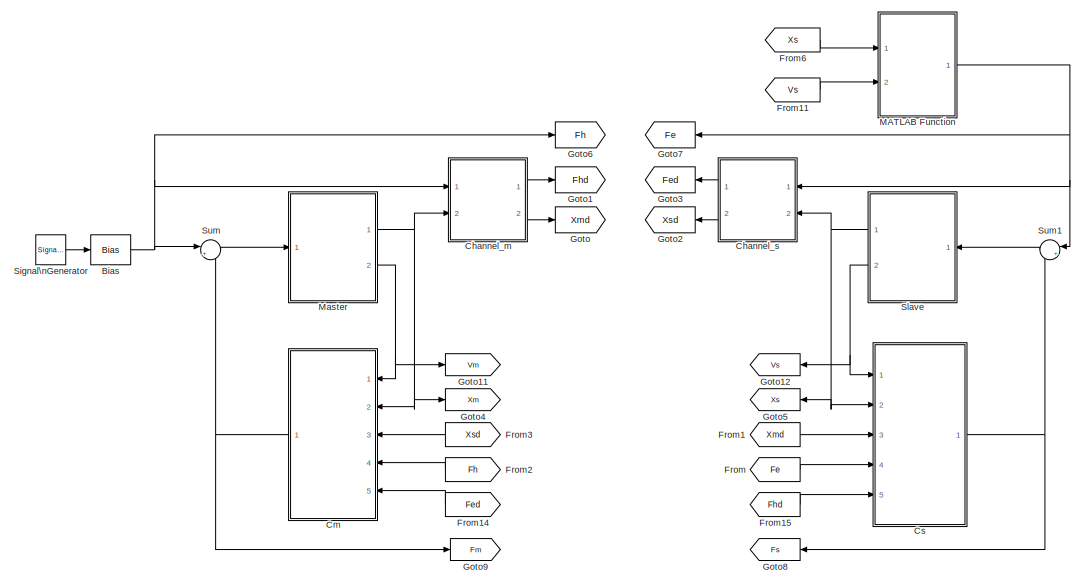
[diagram: root canvas - part 1/2, left side, full height]
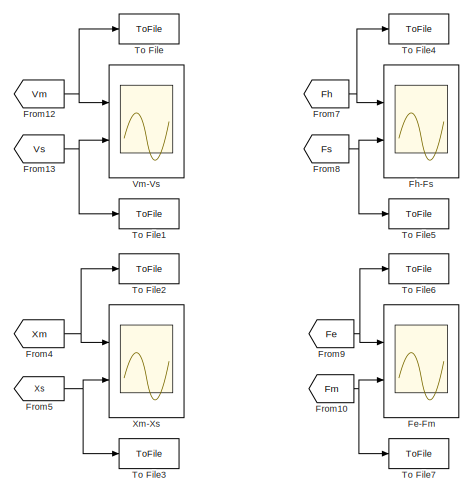
[diagram: root canvas - part 2/2, right side, full height]
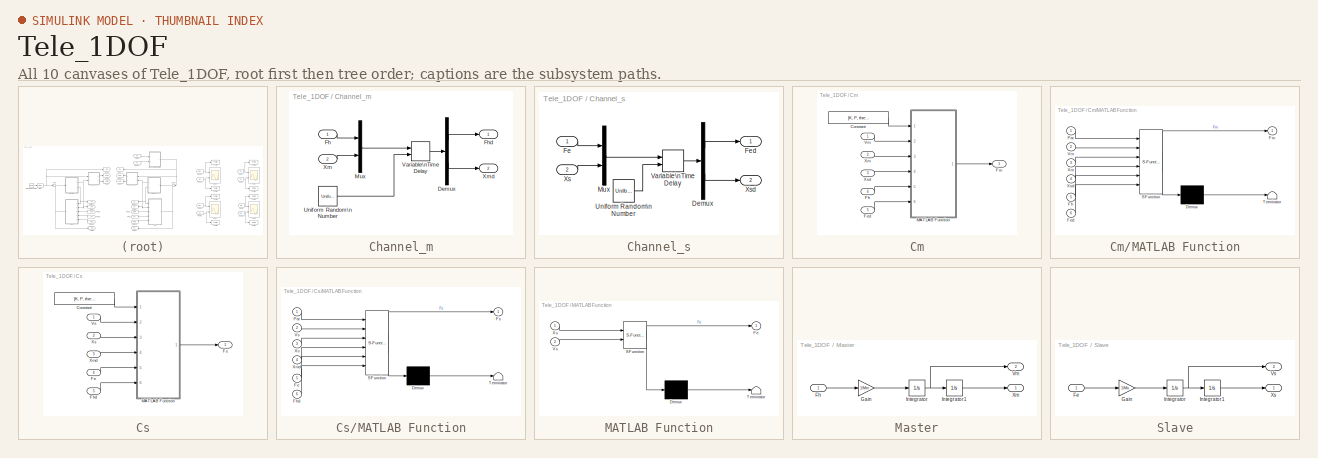
[diagram: thumbnail index - all 10 canvases of the model, root first then tree order]
MODEL Tele_1DOF
KIND model
BLOCK [Bias] Bias
  Bias = 0.5
  SID = 78
  SaturateOnIntegerOverflow = off
BLOCK [SubSystem] Channel_m
  Ports = [2, 2]
  RequestExecContextInheritance = off
  SID = 52
  Variant = off
BLOCK [Demux] Channel_m/Demux
  DisplayOption = bar
  Outputs = 2
  Ports = [1, 2]
  SID = 50
BLOCK [Inport] Channel_m/Fh
  IconDisplay = Port number
  SID = 53
BLOCK [Outport] Channel_m/Fhd
  IconDisplay = Port number
  SID = 55
BLOCK [Mux] Channel_m/Mux
  DisplayOption = bar
  Inputs = 2
  Ports = [2, 1]
  SID = 49
BLOCK [UniformRandomNumber] Channel_m/Uniform Random\nNumber
  Maximum = dm
  Minimum = 0
  SID = 47
  SampleTime = 0.0001
BLOCK [VariableTransportDelay] Channel_m/Variable\nTime Delay
  MaximumDelay = dm
  Ports = [2, 1]
  SID = 43
BLOCK [Inport] Channel_m/Xm
  IconDisplay = Port number
  Port = 2
  SID = 54
BLOCK [Outport] Channel_m/Xmd
  IconDisplay = Port number
  Port = 2
  SID = 56
BLOCK [SubSystem] Channel_s
  Ports = [2, 2]
  RequestExecContextInheritance = off
  SID = 57
  Variant = off
BLOCK [Demux] Channel_s/Demux
  DisplayOption = bar
  Outputs = 2
  Ports = [1, 2]
  SID = 60
BLOCK [Inport] Channel_s/Fe
  IconDisplay = Port number
  SID = 58
BLOCK [Outport] Channel_s/Fed
  IconDisplay = Port number
  SID = 64
BLOCK [Mux] Channel_s/Mux
  DisplayOption = bar
  Inputs = 2
  Ports = [2, 1]
  SID = 61
BLOCK [UniformRandomNumber] Channel_s/Uniform Random\nNumber
  Maximum = ds
  Minimum = 0
  SID = 62
  SampleTime = 0
BLOCK [VariableTransportDelay] Channel_s/Variable\nTime Delay
  MaximumDelay = ds
  Ports = [2, 1]
  SID = 63
BLOCK [Inport] Channel_s/Xs
  IconDisplay = Port number
  Port = 2
  SID = 59
BLOCK [Outport] Channel_s/Xsd
  IconDisplay = Port number
  Port = 2
  SID = 65
BLOCK [SubSystem] Cm
  Ports = [5, 1]
  RequestExecContextInheritance = off
  SID = 26
  Variant = off
BLOCK [Constant] Cm/Constant
  SID = 25
  Value = [K, P, threshold, gamma]
BLOCK [Inport] Cm/Fed
  IconDisplay = Port number
  Port = 5
  SID = 123
BLOCK [Inport] Cm/Fh
  IconDisplay = Port number
  Port = 4
  SID = 30
BLOCK [Outport] Cm/Fm
  IconDisplay = Port number
  SID = 31
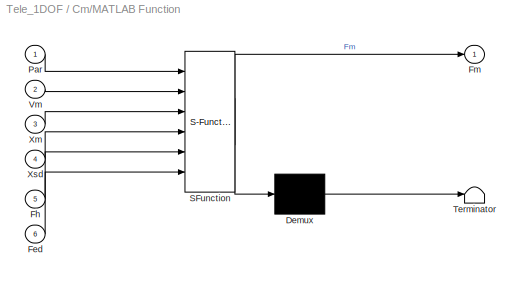
BLOCK [SubSystem] Cm/MATLAB Function
  ErrorFcn = Stateflow.Translate.translate
  PermitHierarchicalResolution = ExplicitOnly
  Ports = [6, 1]
  RequestExecContextInheritance = off
  SFBlockType = MATLAB Function
  SID = 23
  TreatAsAtomicUnit = on
  Variant = off
BLOCK [Demux] Cm/MATLAB Function/ Demux 
  Outputs = 1
  Ports = [1, 1]
  SID = 23::17
BLOCK [S-Function] Cm/MATLAB Function/ SFunction 
  EnableBusSupport = on
  FunctionName = sf_sfun
  PortCounts = [6 2]
  Ports = [6, 2]
  SFunctionDeploymentMode = off
  SID = 23::16
  Tag = Stateflow S-Function Tele_1DOF 2
BLOCK [Terminator] Cm/MATLAB Function/ Terminator 
  SID = 23::18
BLOCK [Inport] Cm/MATLAB Function/Fed
  IconDisplay = Port number
  Port = 6
  SID = 23::22
BLOCK [Inport] Cm/MATLAB Function/Fh
  IconDisplay = Port number
  Port = 5
  SID = 23::23
BLOCK [Outport] Cm/MATLAB Function/Fm
  IconDisplay = Port number
  SID = 23::5
BLOCK [Inport] Cm/MATLAB Function/Par
  IconDisplay = Port number
  SID = 23::1
BLOCK [Inport] Cm/MATLAB Function/Vm
  IconDisplay = Port number
  Port = 2
  SID = 23::19
BLOCK [Inport] Cm/MATLAB Function/Xm
  IconDisplay = Port number
  Port = 3
  SID = 23::20
BLOCK [Inport] Cm/MATLAB Function/Xsd
  IconDisplay = Port number
  Port = 4
  SID = 23::21
BLOCK [Inport] Cm/Vm
  IconDisplay = Port number
  SID = 27
BLOCK [Inport] Cm/Xm
  IconDisplay = Port number
  Port = 2
  SID = 28
BLOCK [Inport] Cm/Xsd
  IconDisplay = Port number
  Port = 3
  SID = 29
BLOCK [SubSystem] Cs
  Ports = [5, 1]
  RequestExecContextInheritance = off
  SID = 32
  Variant = off
BLOCK [Constant] Cs/Constant
  SID = 37
  Value = [K, P, threshold, gamma]
BLOCK [Inport] Cs/Fe
  IconDisplay = Port number
  Port = 4
  SID = 36
BLOCK [Inport] Cs/Fhd
  IconDisplay = Port number
  Port = 5
  SID = 125
BLOCK [Outport] Cs/Fs
  IconDisplay = Port number
  SID = 39
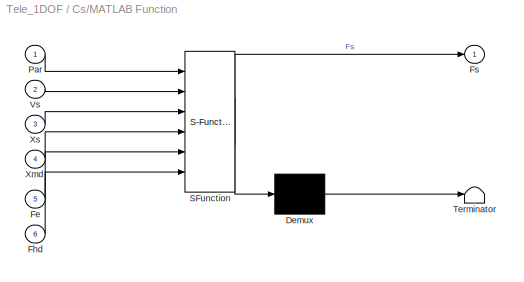
BLOCK [SubSystem] Cs/MATLAB Function
  ErrorFcn = Stateflow.Translate.translate
  PermitHierarchicalResolution = ExplicitOnly
  Ports = [6, 1]
  RequestExecContextInheritance = off
  SFBlockType = MATLAB Function
  SID = 38
  TreatAsAtomicUnit = on
  Variant = off
BLOCK [Demux] Cs/MATLAB Function/ Demux 
  Outputs = 1
  Ports = [1, 1]
  SID = 38::17
BLOCK [S-Function] Cs/MATLAB Function/ SFunction 
  EnableBusSupport = on
  FunctionName = sf_sfun
  PortCounts = [6 2]
  Ports = [6, 2]
  SFunctionDeploymentMode = off
  SID = 38::16
  Tag = Stateflow S-Function Tele_1DOF 1
BLOCK [Terminator] Cs/MATLAB Function/ Terminator 
  SID = 38::18
BLOCK [Inport] Cs/MATLAB Function/Fe
  IconDisplay = Port number
  Port = 5
  SID = 38::23
BLOCK [Inport] Cs/MATLAB Function/Fhd
  IconDisplay = Port number
  Port = 6
  SID = 38::22
BLOCK [Outport] Cs/MATLAB Function/Fs
  IconDisplay = Port number
  SID = 38::5
BLOCK [Inport] Cs/MATLAB Function/Par
  IconDisplay = Port number
  SID = 38::1
BLOCK [Inport] Cs/MATLAB Function/Vs
  IconDisplay = Port number
  Port = 2
  SID = 38::19
BLOCK [Inport] Cs/MATLAB Function/Xmd
  IconDisplay = Port number
  Port = 4
  SID = 38::21
BLOCK [Inport] Cs/MATLAB Function/Xs
  IconDisplay = Port number
  Port = 3
  SID = 38::20
BLOCK [Inport] Cs/Vs
  IconDisplay = Port number
  SID = 33
BLOCK [Inport] Cs/Xmd
  IconDisplay = Port number
  Port = 3
  SID = 35
BLOCK [Inport] Cs/Xs
  IconDisplay = Port number
  Port = 2
  SID = 34
BLOCK [Scope] Fe-Fm
  NumInputPorts = 2
  Ports = [2]
  SID = 95
  ScopeSpecificationString = Simulink.scopes.TimeScopeBlockCfg('CurrentConfiguration', extmgr.ConfigurationSet(extmgr.Configuration('Core','General UI',true),extmgr.Configuration('Core','Source UI',true),extmgr.Configuration('Sources','WiredSimulink',true,'DataLoggingVariableName','ScopeData2'),extmgr.Configuration('Visuals','Time Domain',true,'SerializedDisplays',{struct('MinYLimReal','-547.34009','MaxYLimReal','60.81557','Y...<+1453ch>
BLOCK [Scope] Fh-Fs
  NumInputPorts = 2
  Ports = [2]
  SID = 89
  ScopeSpecificationString = Simulink.scopes.TimeScopeBlockCfg('CurrentConfiguration', extmgr.ConfigurationSet(extmgr.Configuration('Core','General UI',true),extmgr.Configuration('Core','Source UI',true),extmgr.Configuration('Sources','WiredSimulink',true,'DataLoggingVariableName','ScopeData1'),extmgr.Configuration('Visuals','Time Domain',true,'SerializedDisplays',{struct('MinYLimReal','-6.6554','MaxYLimReal','9.57213','YLabe...<+1466ch>
BLOCK [From] From
  GotoTag = Fe
  SID = 73
BLOCK [From] From1
  GotoTag = Xmd
  SID = 74
BLOCK [From] From10
  GotoTag = Fm
  SID = 101
BLOCK [From] From11
  GotoTag = Vs
  SID = 102
BLOCK [From] From12
  GotoTag = Vm
  SID = 105
BLOCK [From] From13
  GotoTag = Vs
  SID = 106
BLOCK [From] From14
  GotoTag = Fed
  SID = 124
BLOCK [From] From15
  GotoTag = Fhd
  SID = 126
BLOCK [From] From2
  GotoTag = Fh
  SID = 75
BLOCK [From] From3
  GotoTag = Xsd
  SID = 76
BLOCK [From] From4
  GotoTag = Xm
  SID = 80
BLOCK [From] From5
  GotoTag = Xs
  SID = 81
BLOCK [From] From6
  GotoTag = Xs
  SID = 88
BLOCK [From] From7
  GotoTag = Fh
  SID = 93
BLOCK [From] From8
  GotoTag = Fs
  SID = 94
BLOCK [From] From9
  GotoTag = Fe
  SID = 100
BLOCK [Goto] Goto
  GotoTag = Xmd
  SID = 69
BLOCK [Goto] Goto1
  GotoTag = Fhd
  SID = 70
BLOCK [Goto] Goto11
  GotoTag = Vm
  SID = 107
BLOCK [Goto] Goto12
  GotoTag = Vs
  SID = 108
BLOCK [Goto] Goto2
  GotoTag = Xsd
  SID = 71
BLOCK [Goto] Goto3
  GotoTag = Fed
  SID = 72
BLOCK [Goto] Goto4
  GotoTag = Xm
  SID = 84
BLOCK [Goto] Goto5
  GotoTag = Xs
  SID = 85
BLOCK [Goto] Goto6
  GotoTag = Fh
  SID = 90
BLOCK [Goto] Goto7
  GotoTag = Fe
  SID = 92
BLOCK [Goto] Goto8
  GotoTag = Fs
  SID = 97
BLOCK [Goto] Goto9
  GotoTag = Fm
  SID = 98
BLOCK [SubSystem] MATLAB Function
  ErrorFcn = Stateflow.Translate.translate
  PermitHierarchicalResolution = ExplicitOnly
  Ports = [2, 1]
  RequestExecContextInheritance = off
  SFBlockType = MATLAB Function
  SID = 77
  TreatAsAtomicUnit = on
  Variant = off
BLOCK [Demux] MATLAB Function/ Demux 
  Outputs = 1
  Ports = [1, 1]
  SID = 77::17
BLOCK [S-Function] MATLAB Function/ SFunction 
  EnableBusSupport = on
  FunctionName = sf_sfun
  PortCounts = [2 2]
  Ports = [2, 2]
  SFunctionDeploymentMode = off
  SID = 77::16
  Tag = Stateflow S-Function Tele_1DOF 3
BLOCK [Terminator] MATLAB Function/ Terminator 
  SID = 77::18
BLOCK [Outport] MATLAB Function/Fe
  IconDisplay = Port number
  SID = 77::5
BLOCK [Inport] MATLAB Function/Vs
  IconDisplay = Port number
  Port = 2
  SID = 77::19
BLOCK [Inport] MATLAB Function/Xs
  IconDisplay = Port number
  SID = 77::1
BLOCK [SubSystem] Master
  Ports = [1, 2]
  RequestExecContextInheritance = off
  SID = 7
  Variant = off
BLOCK [Inport] Master/Fh
  IconDisplay = Port number
  SID = 8
BLOCK [Gain] Master/Gain
  Gain = 1/Mm
  OutDataTypeStr = Inherit: Inherit via internal rule
  ParamDataTypeStr = Inherit: Inherit via internal rule
  SID = 82
  SaturateOnIntegerOverflow = off
BLOCK [Integrator] Master/Integrator
  InitialCondition = vm0
  Ports = [1, 1]
  SID = 2
BLOCK [Integrator] Master/Integrator1
  InitialCondition = pm0
  Ports = [1, 1]
  SID = 3
BLOCK [Outport] Master/Vm
  IconDisplay = Port number
  Port = 2
  SID = 9
BLOCK [Outport] Master/Xm
  IconDisplay = Port number
  SID = 10
BLOCK [SignalGenerator] Signal\nGenerator
  Frequency = pi/10
  Ports = [0, 1]
  SID = 40
  Units = rad/sec
BLOCK [SubSystem] Slave
  Ports = [1, 2]
  RequestExecContextInheritance = off
  SID = 11
  Variant = off
BLOCK [Inport] Slave/Fe
  IconDisplay = Port number
  SID = 12
BLOCK [Gain] Slave/Gain
  Gain = 1/Ms
  OutDataTypeStr = Inherit: Inherit via internal rule
  ParamDataTypeStr = Inherit: Inherit via internal rule
  SID = 83
  SaturateOnIntegerOverflow = off
BLOCK [Integrator] Slave/Integrator
  InitialCondition = vs0
  Ports = [1, 1]
  SID = 13
BLOCK [Integrator] Slave/Integrator1
  InitialCondition = ps0
  Ports = [1, 1]
  SID = 14
BLOCK [Outport] Slave/Vs
  IconDisplay = Port number
  Port = 2
  SID = 16
BLOCK [Outport] Slave/Xs
  IconDisplay = Port number
  SID = 17
BLOCK [Sum] Sum
  IconShape = round
  InputSameDT = off
  Inputs = |++
  OutDataTypeStr = Inherit: Inherit via internal rule
  Ports = [2, 1]
  SID = 41
  SaturateOnIntegerOverflow = off
BLOCK [Sum] Sum1
  IconShape = round
  InputSameDT = off
  Inputs = |++
  OutDataTypeStr = Inherit: Inherit via internal rule
  Ports = [2, 1]
  SID = 42
  SaturateOnIntegerOverflow = off
BLOCK [ToFile] To File
  Filename = Vm.mat
  MatrixName = Vm
  Ports = [1]
  SID = 111
  SaveFormat = Timeseries
BLOCK [ToFile] To File1
  Filename = Vs.mat
  MatrixName = Vs
  Ports = [1]
  SID = 112
  SaveFormat = Timeseries
BLOCK [ToFile] To File2
  Filename = Xm.mat
  MatrixName = Xm
  Ports = [1]
  SID = 113
  SaveFormat = Timeseries
BLOCK [ToFile] To File3
  Filename = Xs.mat
  MatrixName = Xs
  Ports = [1]
  SID = 114
  SaveFormat = Timeseries
BLOCK [ToFile] To File4
  Filename = Fh.mat
  MatrixName = Fh
  Ports = [1]
  SID = 115
  SaveFormat = Timeseries
BLOCK [ToFile] To File5
  Filename = Fs.mat
  MatrixName = Fs
  Ports = [1]
  SID = 116
  SaveFormat = Timeseries
BLOCK [ToFile] To File6
  Filename = Fe.mat
  MatrixName = Fe
  Ports = [1]
  SID = 117
  SaveFormat = Timeseries
BLOCK [ToFile] To File7
  Filename = Fm.mat
  MatrixName = Fm
  Ports = [1]
  SID = 118
  SaveFormat = Timeseries
BLOCK [Scope] Vm-Vs
  NumInputPorts = 2
  Ports = [2]
  SID = 104
  ScopeSpecificationString = Simulink.scopes.TimeScopeBlockCfg('CurrentConfiguration', extmgr.ConfigurationSet(extmgr.Configuration('Core','General UI',true),extmgr.Configuration('Core','Source UI',true),extmgr.Configuration('Sources','WiredSimulink',true,'DataLoggingVariableName','ScopeData1'),extmgr.Configuration('Visuals','Time Domain',true,'SerializedDisplays',{struct('MinYLimReal','-0.36628','MaxYLimReal','0.49294','YLab...<+1476ch>
BLOCK [Scope] Xm-Xs
  NumInputPorts = 2
  Ports = [2]
  SID = 79
  ScopeSpecificationString = Simulink.scopes.TimeScopeBlockCfg('CurrentConfiguration', extmgr.ConfigurationSet(extmgr.Configuration('Core','General UI',true),extmgr.Configuration('Core','Source UI',true),extmgr.Configuration('Sources','WiredSimulink',true),extmgr.Configuration('Visuals','Time Domain',true,'SerializedDisplays',{struct('MinYLimReal','-24.12111','MaxYLimReal','4.08022','YLabelReal','','MinYLimMag','0.00000','Max...<+1440ch>
NET Bias:1 -> Channel_m:1, Goto6:1, Sum:1
LINE Channel_m/Demux:1 -> Channel_m/Fhd:1
LINE Channel_m/Demux:2 -> Channel_m/Xmd:1
LINE Channel_m/Fh:1 -> Channel_m/Mux:1
LINE Channel_m/Mux:1 -> Channel_m/Variable\nTime Delay:1
LINE Channel_m/Uniform Random\nNumber:1 -> Channel_m/Variable\nTime Delay:2
LINE Channel_m/Variable\nTime Delay:1 -> Channel_m/Demux:1
LINE Channel_m/Xm:1 -> Channel_m/Mux:2
LINE Channel_m:1 -> Goto1:1
LINE Channel_m:2 -> Goto:1
LINE Channel_s/Demux:1 -> Channel_s/Fed:1
LINE Channel_s/Demux:2 -> Channel_s/Xsd:1
LINE Channel_s/Fe:1 -> Channel_s/Mux:1
LINE Channel_s/Mux:1 -> Channel_s/Variable\nTime Delay:1
LINE Channel_s/Uniform Random\nNumber:1 -> Channel_s/Variable\nTime Delay:2
LINE Channel_s/Variable\nTime Delay:1 -> Channel_s/Demux:1
LINE Channel_s/Xs:1 -> Channel_s/Mux:2
LINE Channel_s:1 -> Goto3:1
LINE Channel_s:2 -> Goto2:1
LINE Cm/Constant:1 -> Cm/MATLAB Function:1
LINE Cm/Fed:1 -> Cm/MATLAB Function:6
LINE Cm/Fh:1 -> Cm/MATLAB Function:5
LINE Cm/MATLAB Function/ Demux :1 -> Cm/MATLAB Function/ Terminator :1
LINE Cm/MATLAB Function/ SFunction :1 -> Cm/MATLAB Function/ Demux :1
LINE Cm/MATLAB Function/ SFunction :2 -> Cm/MATLAB Function/Fm:1
LINE Cm/MATLAB Function/Fed:1 -> Cm/MATLAB Function/ SFunction :6
LINE Cm/MATLAB Function/Fh:1 -> Cm/MATLAB Function/ SFunction :5
LINE Cm/MATLAB Function/Par:1 -> Cm/MATLAB Function/ SFunction :1
LINE Cm/MATLAB Function/Vm:1 -> Cm/MATLAB Function/ SFunction :2
LINE Cm/MATLAB Function/Xm:1 -> Cm/MATLAB Function/ SFunction :3
LINE Cm/MATLAB Function/Xsd:1 -> Cm/MATLAB Function/ SFunction :4
LINE Cm/MATLAB Function:1 -> Cm/Fm:1
LINE Cm/Vm:1 -> Cm/MATLAB Function:2
LINE Cm/Xm:1 -> Cm/MATLAB Function:3
LINE Cm/Xsd:1 -> Cm/MATLAB Function:4
NET Cm:1 -> Goto9:1, Sum:2
LINE Cs/Constant:1 -> Cs/MATLAB Function:1
LINE Cs/Fe:1 -> Cs/MATLAB Function:5
LINE Cs/Fhd:1 -> Cs/MATLAB Function:6
LINE Cs/MATLAB Function/ Demux :1 -> Cs/MATLAB Function/ Terminator :1
LINE Cs/MATLAB Function/ SFunction :1 -> Cs/MATLAB Function/ Demux :1
LINE Cs/MATLAB Function/ SFunction :2 -> Cs/MATLAB Function/Fs:1
LINE Cs/MATLAB Function/Fe:1 -> Cs/MATLAB Function/ SFunction :5
LINE Cs/MATLAB Function/Fhd:1 -> Cs/MATLAB Function/ SFunction :6
LINE Cs/MATLAB Function/Par:1 -> Cs/MATLAB Function/ SFunction :1
LINE Cs/MATLAB Function/Vs:1 -> Cs/MATLAB Function/ SFunction :2
LINE Cs/MATLAB Function/Xmd:1 -> Cs/MATLAB Function/ SFunction :4
LINE Cs/MATLAB Function/Xs:1 -> Cs/MATLAB Function/ SFunction :3
LINE Cs/MATLAB Function:1 -> Cs/Fs:1
LINE Cs/Vs:1 -> Cs/MATLAB Function:2
LINE Cs/Xmd:1 -> Cs/MATLAB Function:4
LINE Cs/Xs:1 -> Cs/MATLAB Function:3
NET Cs:1 -> Goto8:1, Sum1:2
NET From10:1 -> Fe-Fm:2, To File7:1
LINE From11:1 -> MATLAB Function:2
NET From12:1 -> To File:1, Vm-Vs:1
NET From13:1 -> To File1:1, Vm-Vs:2
LINE From14:1 -> Cm:5
LINE From15:1 -> Cs:5
LINE From1:1 -> Cs:3
LINE From2:1 -> Cm:4
LINE From3:1 -> Cm:3
NET From4:1 -> To File2:1, Xm-Xs:1
NET From5:1 -> To File3:1, Xm-Xs:2
LINE From6:1 -> MATLAB Function:1
NET From7:1 -> Fh-Fs:1, To File4:1
NET From8:1 -> Fh-Fs:2, To File5:1
NET From9:1 -> Fe-Fm:1, To File6:1
LINE From:1 -> Cs:4
LINE MATLAB Function/ Demux :1 -> MATLAB Function/ Terminator :1
LINE MATLAB Function/ SFunction :1 -> MATLAB Function/ Demux :1
LINE MATLAB Function/ SFunction :2 -> MATLAB Function/Fe:1
LINE MATLAB Function/Vs:1 -> MATLAB Function/ SFunction :2
LINE MATLAB Function/Xs:1 -> MATLAB Function/ SFunction :1
NET MATLAB Function:1 -> Channel_s:1, Goto7:1, Sum1:1
LINE Master/Fh:1 -> Master/Gain:1
LINE Master/Gain:1 -> Master/Integrator:1
LINE Master/Integrator1:1 -> Master/Xm:1
NET Master/Integrator:1 -> Master/Integrator1:1, Master/Vm:1
NET Master:1 -> Channel_m:2, Cm:2, Goto4:1
NET Master:2 -> Cm:1, Goto11:1
LINE Signal\nGenerator:1 -> Bias:1
LINE Slave/Fe:1 -> Slave/Gain:1
LINE Slave/Gain:1 -> Slave/Integrator:1
LINE Slave/Integrator1:1 -> Slave/Xs:1
NET Slave/Integrator:1 -> Slave/Integrator1:1, Slave/Vs:1
NET Slave:1 -> Channel_s:2, Cs:2, Goto5:1
NET Slave:2 -> Cs:1, Goto12:1
LINE Sum1:1 -> Slave:1
LINE Sum:1 -> Master:1
note: NET lines group one-source signal fan-out (src -> all destinations, sorted); 1:1 wires keep LINE
CHART Cs/MATLAB Function states=1 transitions=1
  STATE_LABEL 'eML_blk_kernel()'
CHART Cm/MATLAB Function states=1 transitions=1
  STATE_LABEL 'eML_blk_kernel()'
CHART MATLAB Function states=1 transitions=1
  STATE_LABEL 'eML_blk_kernel()'
